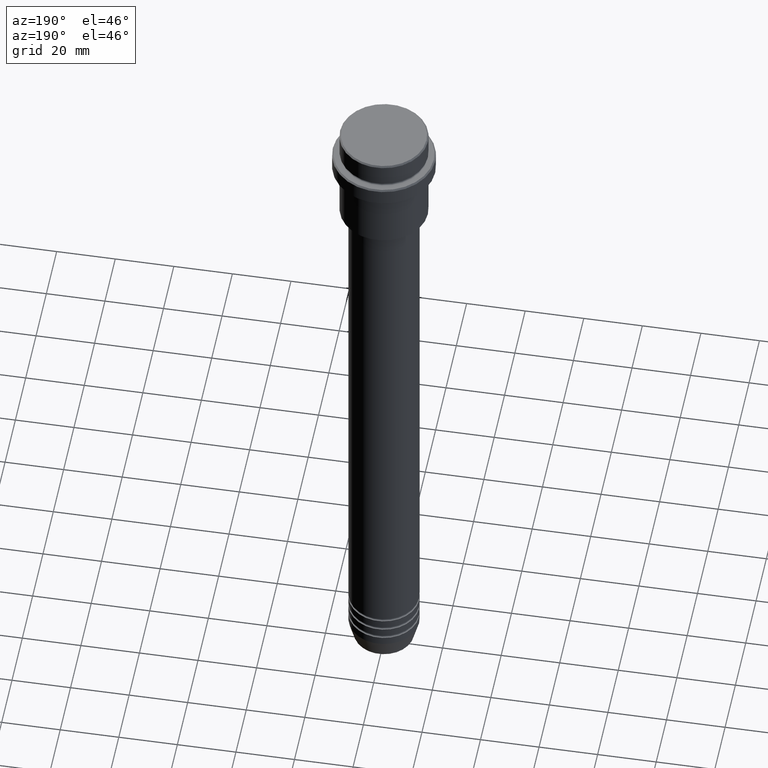
[diagram: clean part render]
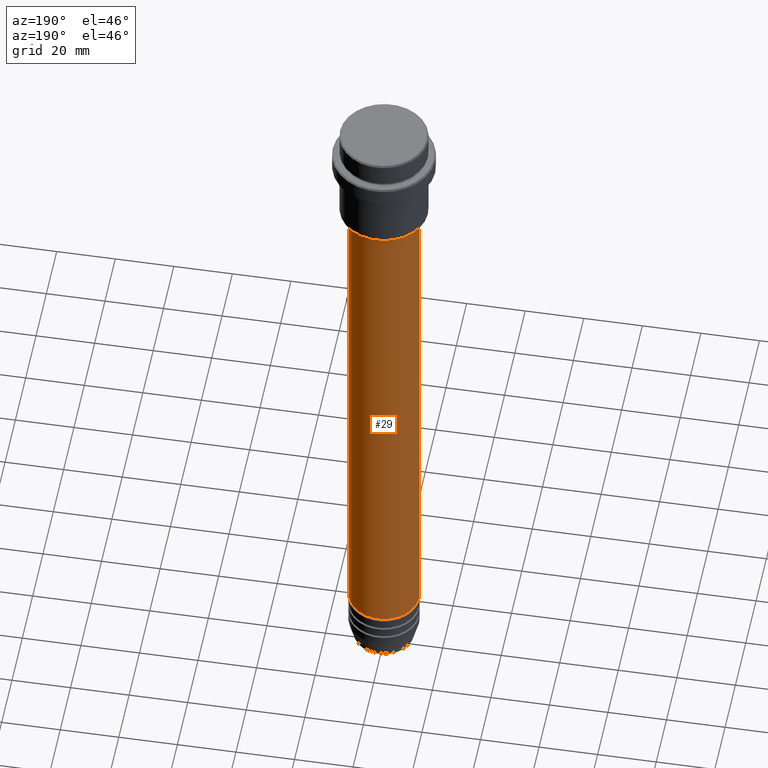
[diagram: same view with one face highlighted and labeled with its STEP entity id]
A machine part, auxiliary view. The second image highlights one B-rep face of the part: STEP entity #29.
In plain terms, the highlighted cylindrical surface (edge-blend (fillet) strip) has radius 12 mm, axis along (-0, -0, 1).
Its self-contained STEP definition (entity closure, byte-faithful):
#29 = ADVANCED_FACE ( 'NONE', ( #770 ), #1197, .T. ) ;
#31 = CARTESIAN_POINT ( 'NONE',  ( 0.000000000000000000, 0.000000000000000000, -37.00000000000000711 ) ) ;
#257 = DIRECTION ( 'NONE',  ( -0.000000000000000000, -0.000000000000000000, 1.000000000000000000 ) ) ;
#261 = CARTESIAN_POINT ( 'NONE',  ( -11.99999999999999822, 1.469576158976823750E-15, -37.00000000000000711 ) ) ;
#274 = DIRECTION ( 'NONE',  ( -0.000000000000000000, -0.000000000000000000, 1.000000000000000000 ) ) ;
#320 = VERTEX_POINT ( 'NONE', #1081 ) ;
#333 = ORIENTED_EDGE ( 'NONE', *, *, #373, .F. ) ;
#359 = DIRECTION ( 'NONE',  ( -0.000000000000000000, -0.000000000000000000, 1.000000000000000000 ) ) ;
#373 = EDGE_CURVE ( 'NONE', #779, #412, #1269, .T. ) ;
#412 = VERTEX_POINT ( 'NONE', #418 ) ;
#418 = CARTESIAN_POINT ( 'NONE',  ( 11.99999999999999822, 0.000000000000000000, -37.00000000000000711 ) ) ;
#424 = DIRECTION ( 'NONE',  ( -0.000000000000000000, -0.000000000000000000, 1.000000000000000000 ) ) ;
#433 = CARTESIAN_POINT ( 'NONE',  ( 12.00000000000000000, 0.000000000000000000, -221.9999999999998579 ) ) ;
#445 = EDGE_CURVE ( 'NONE', #412, #497, #1295, .T. ) ;
#450 = CARTESIAN_POINT ( 'NONE',  ( 0.000000000000000000, 0.000000000000000000, 0.000000000000000000 ) ) ;
#461 = CIRCLE ( 'NONE', #1371, 12.00000000000000000 ) ;
#497 = VERTEX_POINT ( 'NONE', #261 ) ;
#545 = DIRECTION ( 'NONE',  ( 1.000000000000000000, 0.000000000000000000, 0.000000000000000000 ) ) ;
#552 = DIRECTION ( 'NONE',  ( 1.000000000000000000, 0.000000000000000000, 0.000000000000000000 ) ) ;
#692 = EDGE_LOOP ( 'NONE', ( #1298, #909, #1064, #333 ) ) ;
#703 = EDGE_CURVE ( 'NONE', #779, #320, #461, .T. ) ;
#707 = DIRECTION ( 'NONE',  ( 1.000000000000000000, 0.000000000000000000, 0.000000000000000000 ) ) ;
#770 = FACE_OUTER_BOUND ( 'NONE', #692, .T. ) ;
#779 = VERTEX_POINT ( 'NONE', #433 ) ;
#820 = CARTESIAN_POINT ( 'NONE',  ( 0.000000000000000000, 0.000000000000000000, -221.9999999999998579 ) ) ;
#849 = EDGE_CURVE ( 'NONE', #320, #497, #1392, .T. ) ;
#878 = VECTOR ( 'NONE', #424, 1000.000000000000000 ) ;
#909 = ORIENTED_EDGE ( 'NONE', *, *, #849, .T. ) ;
#988 = AXIS2_PLACEMENT_3D ( 'NONE', #450, #359, #545 ) ;
#1064 = ORIENTED_EDGE ( 'NONE', *, *, #445, .F. ) ;
#1081 = CARTESIAN_POINT ( 'NONE',  ( -12.00000000000000000, 1.469576158976823947E-15, -221.9999999999998579 ) ) ;
#1099 = VECTOR ( 'NONE', #257, 1000.000000000000000 ) ;
#1142 = AXIS2_PLACEMENT_3D ( 'NONE', #31, #1293, #552 ) ;
#1197 = CYLINDRICAL_SURFACE ( 'NONE', #988, 12.00000000000000000 ) ;
#1262 = CARTESIAN_POINT ( 'NONE',  ( 12.00000000000000000, 0.000000000000000000, 0.000000000000000000 ) ) ;
#1269 = LINE ( 'NONE', #1262, #878 ) ;
#1277 = CARTESIAN_POINT ( 'NONE',  ( -12.00000000000000000, 1.469576158976823947E-15, 0.000000000000000000 ) ) ;
#1293 = DIRECTION ( 'NONE',  ( -0.000000000000000000, -0.000000000000000000, 1.000000000000000000 ) ) ;
#1295 = CIRCLE ( 'NONE', #1142, 11.99999999999999822 ) ;
#1298 = ORIENTED_EDGE ( 'NONE', *, *, #703, .T. ) ;
#1371 = AXIS2_PLACEMENT_3D ( 'NONE', #820, #274, #707 ) ;
#1392 = LINE ( 'NONE', #1277, #1099 ) ;